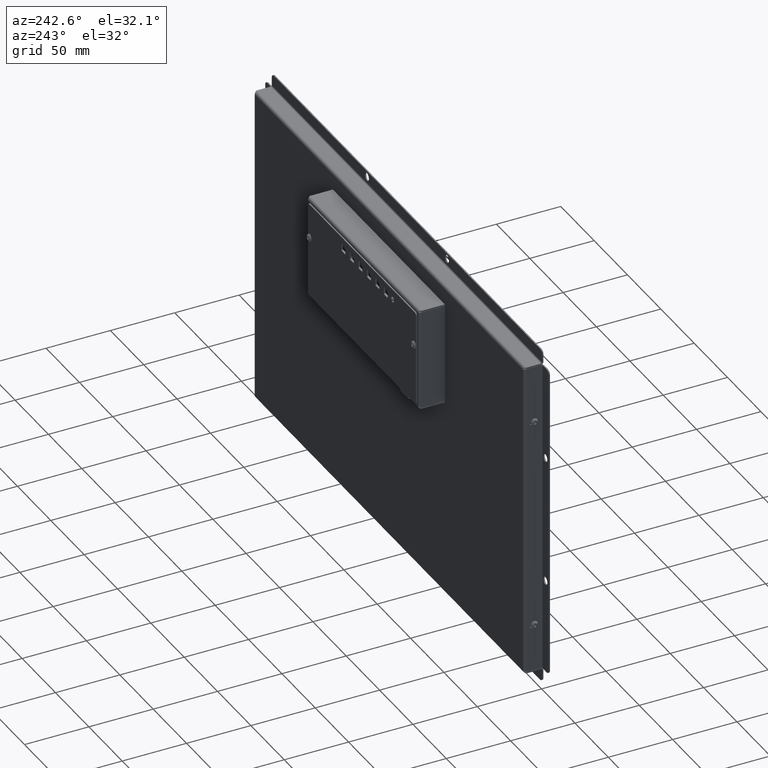
[diagram: clean part render]
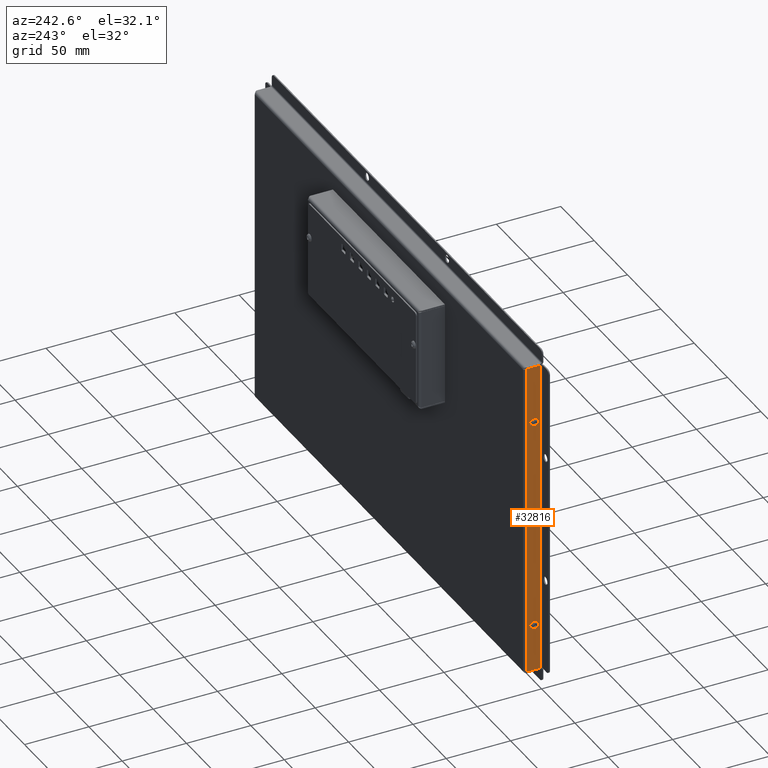
[diagram: same view with one face highlighted and labeled with its STEP entity id]
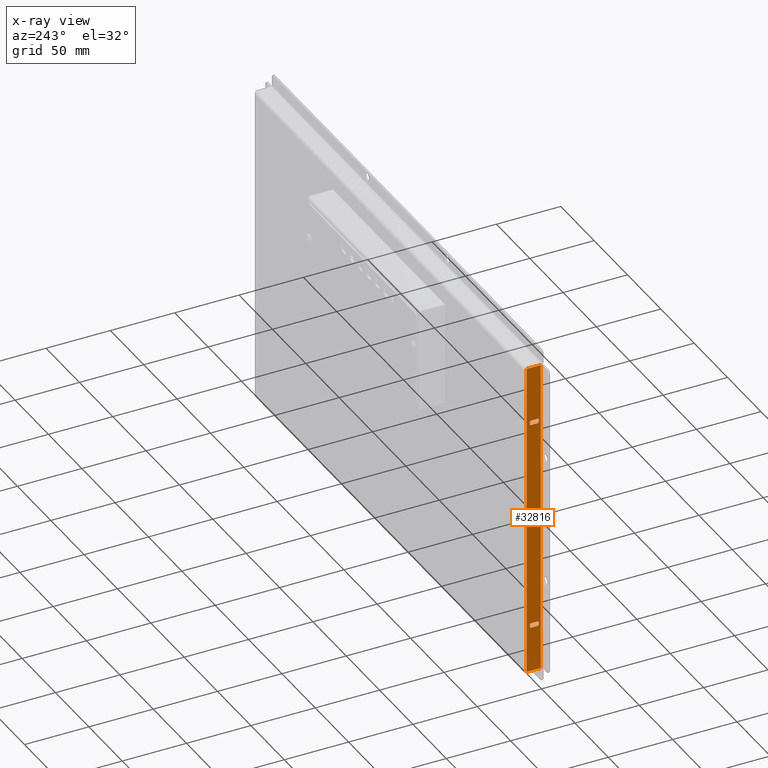
[diagram: x-ray of the same camera — body ghosted, the highlighted face saturated]
A machine part, auxiliary view. The second image highlights one B-rep face of the part: STEP entity #32816.
The next image is the same camera in x-ray: the body ghosted, the highlighted face saturated — about 0% of this face is hidden behind the body in this view.
In plain terms, the highlighted planar face has unit normal (-1, 0, -0).
Its self-contained STEP definition (entity closure, byte-faithful):
#1965=FACE_BOUND('',#5345,.T.);
#1966=FACE_BOUND('',#5346,.T.);
#2300=PLANE('',#35264);
#3471=FACE_OUTER_BOUND('',#5344,.T.);
#5344=EDGE_LOOP('',(#23320,#23321,#23322,#23323));
#5345=EDGE_LOOP('',(#23324,#23325,#23326,#23327,#23328,#23329,#23330,#23331));
#5346=EDGE_LOOP('',(#23332,#23333,#23334,#23335,#23336,#23337,#23338,#23339));
#7444=LINE('',#47652,#10583);
#7448=LINE('',#47664,#10587);
#7452=LINE('',#47676,#10591);
#7456=LINE('',#47687,#10595);
#7460=LINE('',#47700,#10599);
#7464=LINE('',#47712,#10603);
#7468=LINE('',#47724,#10607);
#7472=LINE('',#47735,#10611);
#7559=LINE('',#48000,#10698);
#7566=LINE('',#48023,#10705);
#7569=LINE('',#48029,#10708);
#7570=LINE('',#48030,#10709);
#10583=VECTOR('',#38411,10.);
#10587=VECTOR('',#38423,10.);
#10591=VECTOR('',#38435,10.);
#10595=VECTOR('',#38447,10.);
#10599=VECTOR('',#38459,10.);
#10603=VECTOR('',#38471,10.);
#10607=VECTOR('',#38483,10.);
#10611=VECTOR('',#38495,10.);
#10698=VECTOR('',#38772,10.);
#10705=VECTOR('',#38801,10.);
#10708=VECTOR('',#38806,10.);
#10709=VECTOR('',#38807,10.);
#13697=CIRCLE('',#35127,1.00000000000001);
#13699=CIRCLE('',#35131,1.);
#13701=CIRCLE('',#35135,1.00000000000001);
#13703=CIRCLE('',#35139,1.);
#13705=CIRCLE('',#35143,1.00000000000005);
#13707=CIRCLE('',#35147,1.00000000000005);
#13709=CIRCLE('',#35151,1.00000000000002);
#13711=CIRCLE('',#35155,1.00000000000001);
#15034=VERTEX_POINT('',#47642);
#15035=VERTEX_POINT('',#47643);
#15038=VERTEX_POINT('',#47651);
#15040=VERTEX_POINT('',#47657);
#15042=VERTEX_POINT('',#47663);
#15044=VERTEX_POINT('',#47669);
#15046=VERTEX_POINT('',#47675);
#15048=VERTEX_POINT('',#47681);
#15050=VERTEX_POINT('',#47690);
#15051=VERTEX_POINT('',#47691);
#15054=VERTEX_POINT('',#47699);
#15056=VERTEX_POINT('',#47705);
#15058=VERTEX_POINT('',#47711);
#15060=VERTEX_POINT('',#47717);
#15062=VERTEX_POINT('',#47723);
#15064=VERTEX_POINT('',#47729);
#15147=VERTEX_POINT('',#47991);
#15148=VERTEX_POINT('',#47995);
#15153=VERTEX_POINT('',#48022);
#15155=VERTEX_POINT('',#48028);
#18223=EDGE_CURVE('',#15034,#15035,#13697,.T.);
#18227=EDGE_CURVE('',#15038,#15034,#7444,.T.);
#18230=EDGE_CURVE('',#15040,#15038,#13699,.T.);
#18233=EDGE_CURVE('',#15042,#15040,#7448,.T.);
#18236=EDGE_CURVE('',#15044,#15042,#13701,.T.);
#18239=EDGE_CURVE('',#15046,#15044,#7452,.T.);
#18242=EDGE_CURVE('',#15048,#15046,#13703,.T.);
#18245=EDGE_CURVE('',#15035,#15048,#7456,.T.);
#18247=EDGE_CURVE('',#15050,#15051,#13705,.T.);
#18251=EDGE_CURVE('',#15054,#15050,#7460,.T.);
#18254=EDGE_CURVE('',#15056,#15054,#13707,.T.);
#18257=EDGE_CURVE('',#15058,#15056,#7464,.T.);
#18260=EDGE_CURVE('',#15060,#15058,#13709,.T.);
#18263=EDGE_CURVE('',#15062,#15060,#7468,.T.);
#18266=EDGE_CURVE('',#15064,#15062,#13711,.T.);
#18269=EDGE_CURVE('',#15051,#15064,#7472,.T.);
#18400=EDGE_CURVE('',#15147,#15148,#7559,.T.);
#18411=EDGE_CURVE('',#15153,#15147,#7566,.T.);
#18414=EDGE_CURVE('',#15155,#15148,#7569,.T.);
#18415=EDGE_CURVE('',#15155,#15153,#7570,.T.);
#23320=ORIENTED_EDGE('',*,*,#18400,.T.);
#23321=ORIENTED_EDGE('',*,*,#18414,.F.);
#23322=ORIENTED_EDGE('',*,*,#18415,.T.);
#23323=ORIENTED_EDGE('',*,*,#18411,.T.);
#23324=ORIENTED_EDGE('',*,*,#18223,.T.);
#23325=ORIENTED_EDGE('',*,*,#18245,.T.);
#23326=ORIENTED_EDGE('',*,*,#18242,.T.);
#23327=ORIENTED_EDGE('',*,*,#18239,.T.);
#23328=ORIENTED_EDGE('',*,*,#18236,.T.);
#23329=ORIENTED_EDGE('',*,*,#18233,.T.);
#23330=ORIENTED_EDGE('',*,*,#18230,.T.);
#23331=ORIENTED_EDGE('',*,*,#18227,.T.);
#23332=ORIENTED_EDGE('',*,*,#18247,.T.);
#23333=ORIENTED_EDGE('',*,*,#18269,.T.);
#23334=ORIENTED_EDGE('',*,*,#18266,.T.);
#23335=ORIENTED_EDGE('',*,*,#18263,.T.);
#23336=ORIENTED_EDGE('',*,*,#18260,.T.);
#23337=ORIENTED_EDGE('',*,*,#18257,.T.);
#23338=ORIENTED_EDGE('',*,*,#18254,.T.);
#23339=ORIENTED_EDGE('',*,*,#18251,.T.);
#32816=ADVANCED_FACE('',(#3471,#1965,#1966),#2300,.T.);
#35127=AXIS2_PLACEMENT_3D('',#47644,#38403,#38404);
#35131=AXIS2_PLACEMENT_3D('',#47658,#38416,#38417);
#35135=AXIS2_PLACEMENT_3D('',#47670,#38428,#38429);
#35139=AXIS2_PLACEMENT_3D('',#47682,#38440,#38441);
#35143=AXIS2_PLACEMENT_3D('',#47692,#38451,#38452);
#35147=AXIS2_PLACEMENT_3D('',#47706,#38464,#38465);
#35151=AXIS2_PLACEMENT_3D('',#47718,#38476,#38477);
#35155=AXIS2_PLACEMENT_3D('',#47730,#38488,#38489);
#35264=AXIS2_PLACEMENT_3D('',#48027,#38804,#38805);
#38403=DIRECTION('center_axis',(-1.,-2.46914654667729E-18,-4.37322457171378E-15));
#38404=DIRECTION('ref_axis',(-1.23355812938002E-30,-1.,2.77780679783644E-16));
#38411=DIRECTION('',(2.46914654667911E-18,-1.,-4.1610871060708E-16));
#38416=DIRECTION('center_axis',(-1.,-2.46914654667729E-18,-4.37322457171378E-15));
#38417=DIRECTION('ref_axis',(4.44089209850056E-15,-2.77780679783644E-16,
-1.));
#38423=DIRECTION('',(4.37322457171378E-15,-1.16595909948377E-15,-1.));
#38428=DIRECTION('center_axis',(-1.,-2.46914654667729E-18,-4.37322457171378E-15));
#38429=DIRECTION('ref_axis',(1.23355812938002E-30,1.,-2.77780679783644E-16));
#38435=DIRECTION('',(-2.46914654667608E-18,1.,-2.77780679783644E-16));
#38440=DIRECTION('center_axis',(-1.,-2.46914654667729E-18,-4.37322457171378E-15));
#38441=DIRECTION('ref_axis',(-4.44089209850056E-15,2.77780679783644E-16,
1.));
#38447=DIRECTION('',(-4.37322457171378E-15,-6.10397739916481E-16,1.));
#38451=DIRECTION('center_axis',(-1.,-2.46914654667729E-18,-4.37322457171378E-15));
#38452=DIRECTION('ref_axis',(-1.23355812937996E-30,-1.,2.77780679783644E-16));
#38459=DIRECTION('',(-2.46914654667304E-18,1.,-9.71670070174382E-16));
#38464=DIRECTION('center_axis',(-1.,-2.46914654667729E-18,-4.37322457171378E-15));
#38465=DIRECTION('ref_axis',(4.44089209850056E-15,-2.77780679783644E-16,
-1.));
#38471=DIRECTION('',(-4.37322457171378E-15,7.38320803738465E-15,1.));
#38476=DIRECTION('center_axis',(-1.,-2.46914654667729E-18,-4.37322457171378E-15));
#38477=DIRECTION('ref_axis',(1.23355812938E-30,1.,-2.77780679783644E-16));
#38483=DIRECTION('',(2.46914654668215E-18,-1.,-1.10999810099783E-15));
#38488=DIRECTION('center_axis',(-1.,-2.46914654667729E-18,-4.37322457171378E-15));
#38489=DIRECTION('ref_axis',(-4.44089209850056E-15,2.77780679783644E-16,
1.));
#38495=DIRECTION('',(4.37322457171378E-15,6.82764667781736E-15,-1.));
#38772=DIRECTION('',(-2.46914654667729E-18,1.,-1.09652133891791E-32));
#38801=DIRECTION('',(0.,8.19857002800117E-15,-1.));
#38804=DIRECTION('center_axis',(1.,2.46914654667729E-18,4.37322457171378E-15));
#38805=DIRECTION('ref_axis',(4.37322457171378E-15,0.,-1.));
#38806=DIRECTION('',(5.46571335200078E-15,-8.19857002800117E-15,-1.));
#38807=DIRECTION('',(2.46914654667729E-18,-1.,1.33094476877659E-32));
#47642=CARTESIAN_POINT('',(202.625,-87.4999999999997,-10.5000000000001));
#47643=CARTESIAN_POINT('',(202.625,-88.4999999999997,-9.50000000000007));
#47644=CARTESIAN_POINT('Origin',(202.625,-87.4999999999997,-9.50000000000007));
#47651=CARTESIAN_POINT('',(202.625,-85.8999999999997,-10.5000000000001));
#47652=CARTESIAN_POINT('',(202.625,-43.0499999999998,-10.5));
#47657=CARTESIAN_POINT('',(202.625,-84.8999999999997,-9.50000000000007));
#47658=CARTESIAN_POINT('Origin',(202.625,-85.8999999999997,-9.50000000000007));
#47663=CARTESIAN_POINT('',(202.625,-84.8999999999997,-4.50000000000007));
#47664=CARTESIAN_POINT('',(202.625,-84.8999999999997,-5.4345133223538));
#47669=CARTESIAN_POINT('',(202.625,-85.8999999999997,-3.50000000000007));
#47670=CARTESIAN_POINT('Origin',(202.625,-85.8999999999997,-4.50000000000007));
#47675=CARTESIAN_POINT('',(202.625,-87.4999999999997,-3.50000000000007));
#47676=CARTESIAN_POINT('',(202.625,-43.8499999999998,-3.50000000000008));
#47681=CARTESIAN_POINT('',(202.625,-88.4999999999997,-4.50000000000006));
#47682=CARTESIAN_POINT('Origin',(202.625,-87.4999999999997,-4.50000000000006));
#47687=CARTESIAN_POINT('',(202.625,-88.4999999999997,-7.93451332235388));
#47690=CARTESIAN_POINT('',(202.625,79.1000000000003,-3.50000000000007));
#47691=CARTESIAN_POINT('',(202.625,80.1000000000003,-4.50000000000007));
#47692=CARTESIAN_POINT('Origin',(202.625,79.1000000000003,-4.50000000000007));
#47699=CARTESIAN_POINT('',(202.625,77.5000000000003,-3.50000000000007));
#47700=CARTESIAN_POINT('',(202.625,38.6500000000002,-3.50000000000003));
#47705=CARTESIAN_POINT('',(202.625,76.5000000000003,-4.50000000000007));
#47706=CARTESIAN_POINT('Origin',(202.625,77.5000000000003,-4.50000000000007));
#47711=CARTESIAN_POINT('',(202.625,76.5000000000003,-9.50000000000007));
#47712=CARTESIAN_POINT('',(202.625,76.5000000000003,-7.93451332235414));
#47717=CARTESIAN_POINT('',(202.625,77.5000000000003,-10.5000000000001));
#47718=CARTESIAN_POINT('Origin',(202.625,77.5000000000003,-9.50000000000007));
#47723=CARTESIAN_POINT('',(202.625,79.1000000000003,-10.5000000000001));
#47724=CARTESIAN_POINT('',(202.625,39.4500000000002,-10.5000000000001));
#47729=CARTESIAN_POINT('',(202.625,80.1000000000003,-9.50000000000007));
#47730=CARTESIAN_POINT('Origin',(202.625,79.1000000000003,-9.50000000000007));
#47735=CARTESIAN_POINT('',(202.625,80.1000000000003,-5.43451332235358));
#47991=CARTESIAN_POINT('',(202.625,-123.6,-11.9999999999999));
#47995=CARTESIAN_POINT('',(202.625,123.2,-11.9999999999999));
#48000=CARTESIAN_POINT('',(202.625,61.5,-11.9999999999999));
#48022=CARTESIAN_POINT('',(202.625,-123.6,-0.999999999999959));
#48023=CARTESIAN_POINT('',(202.625,-123.6,-0.999999999999979));
#48027=CARTESIAN_POINT('Origin',(202.625,-0.199999999999969,-6.36902664470764));
#48028=CARTESIAN_POINT('',(202.625,123.2,-1.00000000000003));
#48029=CARTESIAN_POINT('',(202.625,123.2,-0.999999999999979));
#48030=CARTESIAN_POINT('',(202.625,-0.199999999999964,-0.999999999999979));